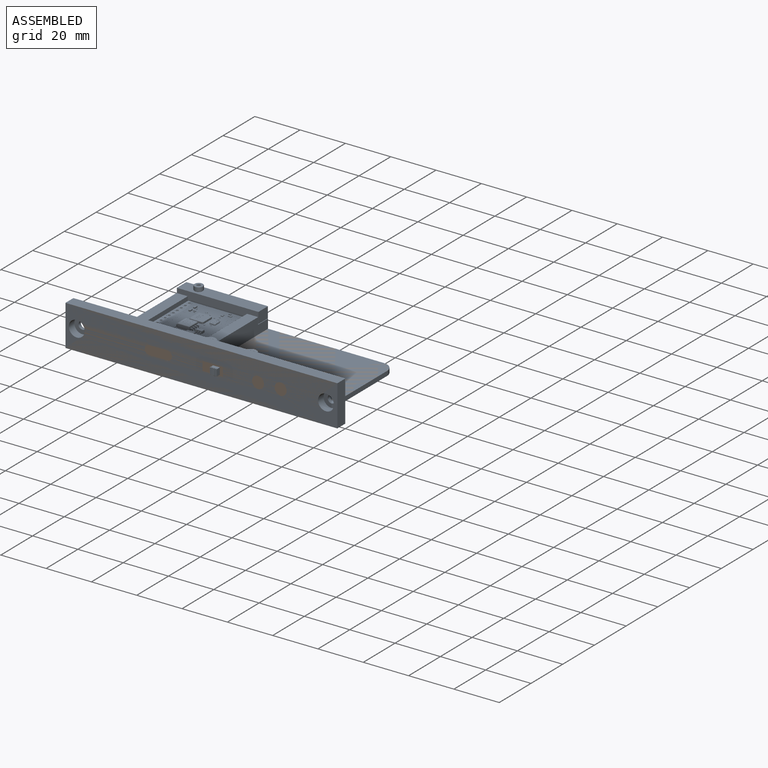
[diagram: assembled view]
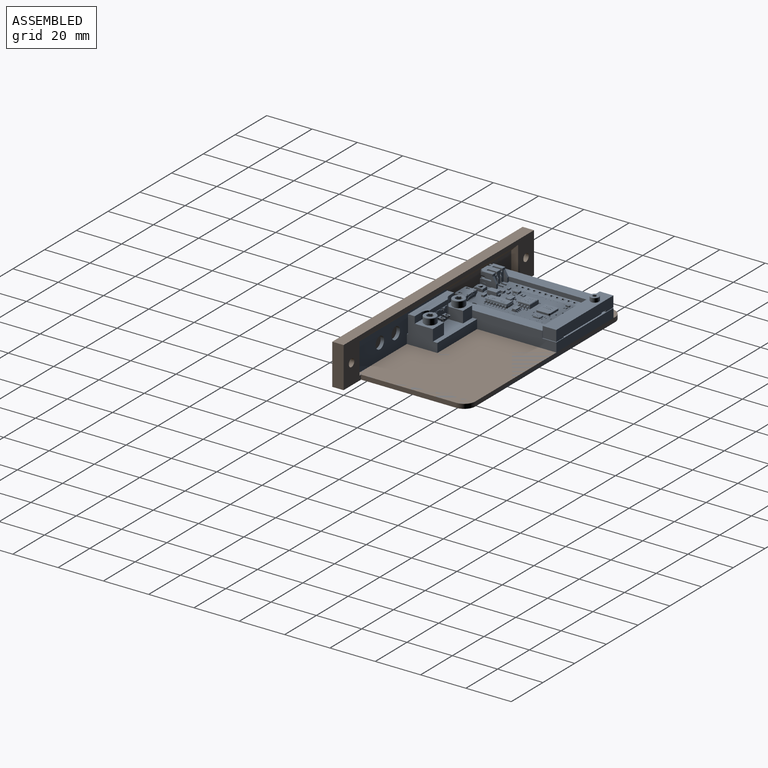
[diagram: assembled view, second angle]
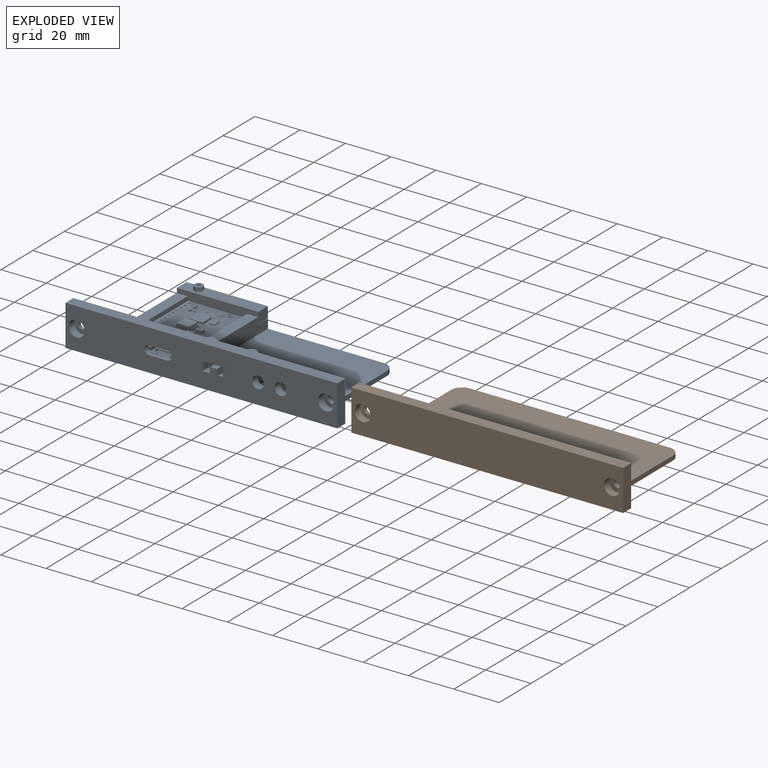
[diagram: exploded view]
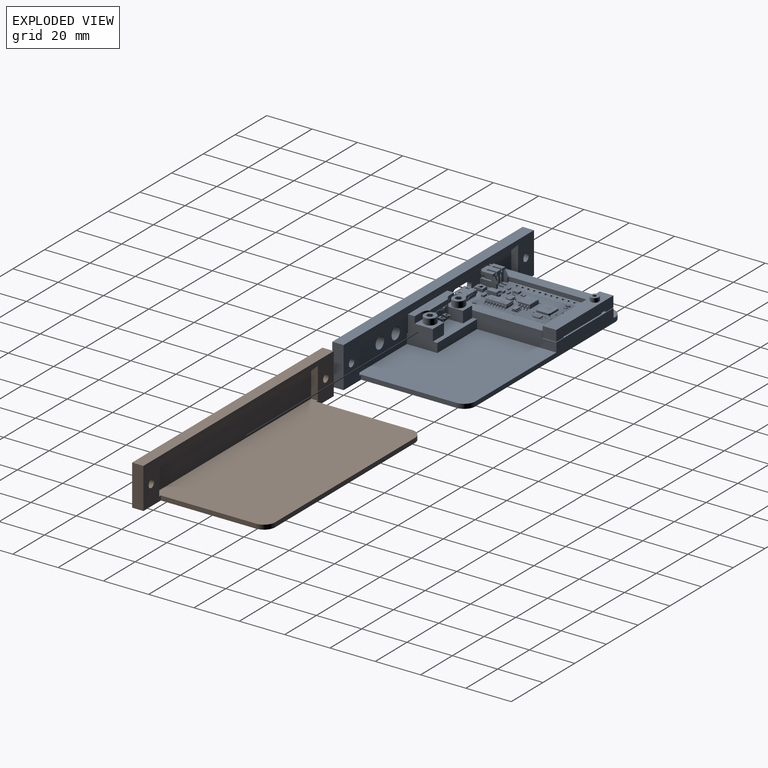
[diagram: exploded view, second angle]
FCSTD DOCUMENT  (FreeCAD 1.0R39109 (Git))
Label: ElectronicsBayLolin32Lite.stl
License: All rights reserved
LicenseURL: http://en.wikipedia.org/wiki/All_rights_reserved
objects: Sketcher::SketchObject×12, App::Link×7, PartDesign::Pad×6, PartDesign::Pocket×4, App::Part×3, PartDesign::Hole×2, PartDesign::Body×2, PartDesign::FeatureBase×1
note: 64 computed .brp shape members not serialized (recipe doc carries the construction recipe); baked Part::Feature solids carry a one-line shape summary decoded from their .brp
EXTERNAL_REF file=../../ReferenceParts/Lolin32Lite.FCStd obj=Lolin_32_Lite_Board_v45
EXTERNAL_REF file=../../ReferenceParts/SS12F15 Switch.FCStd obj=SS12F15
EXTERNAL_REF file=../../ReferenceParts/M3.FCStd obj=Part
EXTERNAL_REF file=../../ReferenceParts/M2.FCStd obj=Part
EXTERNAL_REF file=ElectronicsBayLolin32Lite-SwitchRetainer.stl.FCStd obj=Part003
EXTERNAL_REF file=ElectronicsBayLolin32Lite-board-retainer.stl.FCStd obj=Part003

FEATURE [Sketcher::SketchObject] Sketch
  ArcFitTolerance = 1e-06
  AttachmentSupport = -> [XZ_Plane001]
  FullyConstrained = true
  MakeInternals = false
  MapMode = 5
  Placement = pos=(0,0,0) rot=(1,0,0;1.5708rad)
  sketch-geometry (4):
    g0: LineSegment StartX=0 StartY=9 StartZ=0 EndX=0 EndY=-9 EndZ=0
    g1: LineSegment StartX=0 StartY=-9 StartZ=0 EndX=120 EndY=-9 EndZ=0
    g2: LineSegment StartX=120 StartY=-9 StartZ=0 EndX=120 EndY=9 EndZ=0
    g3: LineSegment StartX=120 StartY=9 StartZ=0 EndX=0 EndY=9 EndZ=0
  constraints (11):
    c: Coincident(g0,g1)
    c: Coincident(g1,g2)
    c: Coincident(g2,g3)
    c: Coincident(g3,g0)
    c: Vertical(g2)
    c: Horizontal(g1)
    c: Horizontal(g3)
    c: PointOnObject(g0,g-2)
    c: DistanceX(g3,g3) = 120
    c: DistanceY(g0,g0) = 18
    c: Symmetric(g0,g0,g-1)
FEATURE [PartDesign::Pad] Pad  label="Panel"
  Direction = (0,-1,2e-16)
  Length = 5
  Length2 = 10
  Placement = pos=(0,0,0) rot=(1,0,0;1.5708rad)
  Profile = -> Sketch
  ReferenceAxis = -> Sketch [N_Axis]
  Refine = true
  Suppressed = false
  Type = 0
FEATURE [Sketcher::SketchObject] Sketch001
  ArcFitTolerance = 1e-06
  AttachmentOffset = pos=(0,0,-9) rot=(0,0,1;0rad)
  AttachmentSupport = -> [XY_Plane001]
  FullyConstrained = true
  MakeInternals = false
  MapMode = 5
  Placement = pos=(0,0,-9) rot=(0,0,1;0rad)
  sketch-geometry (8):
    g0: LineSegment StartX=11 StartY=0 StartZ=0 EndX=109 EndY=0 EndZ=0
    g1: LineSegment StartX=109 StartY=0 StartZ=0 EndX=109 EndY=42 EndZ=0
    g2: LineSegment StartX=104 StartY=47 StartZ=0 EndX=16 EndY=47 EndZ=0
    g3: LineSegment StartX=11 StartY=42 StartZ=0 EndX=11 EndY=0 EndZ=0
    g4: ArcOfCircle CenterX=16 CenterY=42 CenterZ=0 NormalX=0 NormalY=0 NormalZ=1 AngleXU=0 Radius=5 StartAngle=1.5708 EndAngle=3.14159
    g5: GeomPoint [constr] X=11 Y=47 Z=0
    g6: ArcOfCircle CenterX=104 CenterY=42 CenterZ=0 NormalX=0 NormalY=0 NormalZ=1 AngleXU=0 Radius=5 StartAngle=7e-16 EndAngle=1.5708
    g7: GeomPoint [constr] X=109 Y=47 Z=0
  constraints (20):
    c: Coincident(g0,g1)
    c: Coincident(g3,g0)
    c: Horizontal(g0)
    c: Horizontal(g2)
    c: Vertical(g1)
    c: Vertical(g3)
    c: PointOnObject(g0,g-1)
    c: DistanceX(g-1,g5) = 11
    c: DistanceX(g5,g7) = 98
    c: DistanceY(g-1,g5) = 47
    c: PointOnObject(g5,g2)
    c: PointOnObject(g5,g3)
    c: Tangent(g2,g4) = -1.5708
    c: Tangent(g3,g4) = -1.5708
    c: PointOnObject(g7,g1)
    c: PointOnObject(g7,g2)
    c: Tangent(g1,g6) = -1.5708
    c: Tangent(g2,g6) = -1.5708
    c: Equal(g6,g4)
    c: Radius(g6) = 5
FEATURE [PartDesign::Pad] Pad001  label="Base"
  BaseFeature = -> Pad
  Direction = (0,0,1)
  Length = 2
  Length2 = 10
  Placement = pos=(0,0,0) rot=(1,0,0;1.5708rad)
  Profile = -> Sketch001
  ReferenceAxis = -> Sketch001 [N_Axis]
  Refine = true
  Suppressed = false
  Type = 0
FEATURE [Sketcher::SketchObject] Sketch002
  ArcFitTolerance = 1e-06
  AttachmentOffset = pos=(0,0,10) rot=(0,0,1;0rad)
  AttachmentSupport = -> [XZ_Plane001]
  FullyConstrained = true
  MakeInternals = false
  MapMode = 5
  Placement = pos=(0,-10,2.2e-15) rot=(1,0,0;1.5708rad)
  sketch-geometry (2):
    g0: Circle CenterX=5 CenterY=0 CenterZ=0 NormalX=0 NormalY=0 NormalZ=1 AngleXU=0 Radius=1.5
    g1: Circle CenterX=115 CenterY=0 CenterZ=0 NormalX=0 NormalY=0 NormalZ=1 AngleXU=0 Radius=1.5
  constraints (6):
    c: Horizontal(g1,g0)
    c: Equal(g0,g1)
    c: Diameter(g1) = 3
    c: DistanceX(g0,g1) = 110
    c: DistanceX(g-1,g0) = 5
    c: PointOnObject(g0,g-1)
FEATURE [PartDesign::Hole] Hole
  BaseFeature = -> Pad001
  CustomThreadClearance = 0
  Depth = 25
  DepthType = 0
  Diameter = 3.4
  DrillForDepth = false
  DrillPoint = 1
  DrillPointAngle = 118
  HoleCutCountersinkAngle = 90
  HoleCutCustomValues = false
  HoleCutDepth = 8.5
  HoleCutDiameter = 7
  HoleCutType = 1
  ModelThread = false
  Placement = pos=(0,0,0) rot=(1,0,0;1.5708rad)
  Profile = -> Sketch002
  Refine = true
  Suppressed = false
  Tapered = false
  TaperedAngle = 90
  ThreadClass = 0
  ThreadDepth = 25
  ThreadDepthType = 0
  ThreadDirection = 0
  ThreadFit = 0
  ThreadSize = 9
  ThreadType = 1
  Threaded = false
  UseCustomThreadClearance = false
FEATURE [App::Link] Link  label="Lolin 32 Lite Board v45"
  LinkPlacement = pos=(22,-3,-3) rot=(0,0,1;0rad)
  LinkedObject = -> <external ../../ReferenceParts/Lolin32Lite.FCStd>#Lolin_32_Lite_Board_v45
  Placement = pos=(22,-3,-3) rot=(0,0,1;0rad)
FEATURE [App::Link] Link001  label="SS12F15"
  LinkPlacement = pos=(65,-1,0) rot=(1,0,0;1.5708rad)
  LinkedObject = -> <external ../../ReferenceParts/SS12F15 Switch.FCStd>#SS12F15
  Placement = pos=(65,-1,0) rot=(1,0,0;1.5708rad)
FEATURE [Sketcher::SketchObject] Sketch003
  ArcFitTolerance = 1e-06
  AttachmentOffset = pos=(0,0,60) rot=(0,0,1;0rad)
  AttachmentSupport = -> [YZ_Plane001]
  FullyConstrained = true
  MakeInternals = false
  MapMode = 5
  Placement = pos=(60,0,0) rot=(0.57735,0.57735,0.57735;2.0944rad)
  sketch-geometry (4):
    g0: LineSegment StartX=0 StartY=-7 StartZ=0 EndX=-3 EndY=-7 EndZ=0
    g1: LineSegment StartX=-3 StartY=-7 StartZ=0 EndX=-3 EndY=4 EndZ=0
    g2: LineSegment StartX=-3 StartY=4 StartZ=0 EndX=0 EndY=7 EndZ=0
    g3: LineSegment StartX=0 StartY=7 StartZ=0 EndX=0 EndY=-7 EndZ=0
  constraints (12):
    c: PointOnObject(g0,g-2)
    c: Horizontal(g0)
    c: Coincident(g0,g1)
    c: Vertical(g1)
    c: Coincident(g1,g2)
    c: PointOnObject(g2,g-2)
    c: Coincident(g2,g3)
    c: Coincident(g3,g0)
    c: DistanceY(g0,g-1) = 7
    c: DistanceY(g-1,g2) = 7
    c: Angle(g2,g1) = 0.785398
    c: DistanceX(g0,g-1) = 3
FEATURE [PartDesign::Pocket] Pocket
  BaseFeature = -> Hole
  Direction = (-1,0,0)
  Length = 100
  Length2 = 5
  Midplane = true
  Placement = pos=(0,0,0) rot=(1,0,0;1.5708rad)
  Profile = -> Sketch003
  ReferenceAxis = -> Sketch003 [N_Axis]
  Refine = true
  Suppressed = false
  Type = 0
FEATURE [PartDesign::Body] Body  label="ElectronicsBayBase"
  AllowCompound = false
  Group = -> [Sketch,Pad,Sketch001,Pad001,Sketch002,Hole,Sketch003,Pocket]
  Origin = -> Origin001
  Tip = -> Pocket
FEATURE [App::Part] Part002  label="ElectronicsBayBlank"
  Group = -> [Body]
  Origin = -> Origin003
FEATURE [PartDesign::FeatureBase] Clone
  BaseFeature = -> Body
  Suppressed = false
FEATURE [Sketcher::SketchObject] Sketch004
  ArcFitTolerance = 1e-06
  AttachmentOffset = pos=(0,0,-9) rot=(0,0,1;0rad)
  AttachmentSupport = -> [XY_Plane004]
  FullyConstrained = true
  MakeInternals = false
  MapMode = 5
  Placement = pos=(0,0,-9) rot=(0,0,1;0rad)
  sketch-geometry (10):
    g0: LineSegment StartX=21.9 StartY=47 StartZ=0 EndX=17 EndY=47 EndZ=0
    g1: LineSegment StartX=17 StartY=47 StartZ=0 EndX=17 EndY=-4 EndZ=0
    g2: LineSegment StartX=17 StartY=-4 StartZ=0 EndX=21.9 EndY=-4 EndZ=0
    g3: LineSegment StartX=21.9 StartY=-4 StartZ=0 EndX=21.9 EndY=47 EndZ=0
    g4: LineSegment StartX=48.1 StartY=47 StartZ=0 EndX=48.1 EndY=-4 EndZ=0
    g5: LineSegment StartX=48.1 StartY=-4 StartZ=0 EndX=53 EndY=-4 EndZ=0
    g6: LineSegment StartX=53 StartY=-4 StartZ=0 EndX=53 EndY=47 EndZ=0
    g7: LineSegment StartX=53 StartY=47 StartZ=0 EndX=48.1 EndY=47 EndZ=0
    g8: LineSegment [constr] StartX=21.9 StartY=-4 StartZ=0 EndX=48.1 EndY=-4 EndZ=0
    g9: GeomPoint [constr] X=35 Y=-4 Z=0
  constraints (27):
    c: Coincident(g0,g1)
    c: Coincident(g1,g2)
    c: Coincident(g2,g3)
    c: Coincident(g3,g0)
    c: Horizontal(g0)
    c: Horizontal(g2)
    c: Vertical(g1)
    c: Vertical(g3)
    c: Coincident(g4,g5)
    c: Coincident(g5,g6)
    c: Coincident(g6,g7)
    c: Coincident(g7,g4)
    c: Vertical(g4)
    c: Vertical(g6)
    c: Horizontal(g5)
    c: Horizontal(g7)
    c: Equal(g5,g2)
    c: DistanceY(g-1,g0) = 47
    c: DistanceY(g1,g-1) = 4
    c: Horizontal(g2,g4)
    c: Horizontal(g4,g0)
    c: DistanceX(g0,g6) = 36
    c: Coincident(g8,g2)
    c: Coincident(g8,g4)
    c: Symmetric(g8,g8,g9)
    c: DistanceX(g-1,g9) = 35
    c: DistanceX(g8,g8) = 26.2
FEATURE [PartDesign::Pad] Pad002  label="SideWalls"
  BaseFeature = -> Clone
  Direction = (0,0,1)
  Length = 9
  Length2 = 10
  Profile = -> Sketch004
  ReferenceAxis = -> Sketch004 [N_Axis]
  Refine = true
  Suppressed = false
  Type = 0
FEATURE [Sketcher::SketchObject] Sketch005
  ArcFitTolerance = 1e-06
  AttachmentOffset = pos=(0,0,-9) rot=(0,0,1;0rad)
  AttachmentSupport = -> [XY_Plane004]
  FullyConstrained = true
  MakeInternals = false
  MapMode = 5
  Placement = pos=(0,0,-9) rot=(0,0,1;0rad)
  sketch-geometry (8):
    g0: LineSegment StartX=20 StartY=47 StartZ=0 EndX=20 EndY=41 EndZ=0
    g1: LineSegment StartX=20 StartY=41 StartZ=0 EndX=50 EndY=41 EndZ=0
    g2: LineSegment StartX=50 StartY=41 StartZ=0 EndX=50 EndY=47 EndZ=0
    g3: LineSegment StartX=50 StartY=47 StartZ=0 EndX=20 EndY=47 EndZ=0
    g4: LineSegment StartX=49 StartY=8 StartZ=0 EndX=19 EndY=8 EndZ=0
    g5: LineSegment StartX=19 StartY=8 StartZ=0 EndX=19 EndY=-4 EndZ=0
    g6: LineSegment StartX=19 StartY=-4 StartZ=0 EndX=49 EndY=-4 EndZ=0
    g7: LineSegment StartX=49 StartY=-4 StartZ=0 EndX=49 EndY=8 EndZ=0
  constraints (24):
    c: Coincident(g0,g1)
    c: Coincident(g1,g2)
    c: Coincident(g2,g3)
    c: Coincident(g3,g0)
    c: Vertical(g0)
    c: Vertical(g2)
    c: Horizontal(g1)
    c: Horizontal(g3)
    c: Coincident(g4,g5)
    c: Coincident(g5,g6)
    c: Coincident(g6,g7)
    c: Coincident(g7,g4)
    c: Horizontal(g4)
    c: Horizontal(g6)
    c: Vertical(g5)
    c: Vertical(g7)
    c: DistanceY(g-1,g4) = 8
    c: DistanceX(g-1,g6) = 49
    c: DistanceX(g6,g6) = 30
    c: Distance(g5,g-1) = 4
    c: DistanceY(g-1,g0) = 47
    c: DistanceX(g-1,g0) = 20
    c: DistanceX(g3,g3) = 30
    c: DistanceY(g0,g0) = 6
FEATURE [PartDesign::Pad] Pad003  label="Standoffs"
  BaseFeature = -> Pad002
  Direction = (0,0,1)
  Length = 6
  Length2 = 10
  Profile = -> Sketch005
  ReferenceAxis = -> Sketch005 [N_Axis]
  Refine = true
  Suppressed = false
  Type = 0
FEATURE [Sketcher::SketchObject] Sketch006
  ArcFitTolerance = 1e-06
  AttachmentOffset = pos=(0,0,5) rot=(0,0,1;0rad)
  AttachmentSupport = -> [XZ_Plane004]
  FullyConstrained = true
  MakeInternals = false
  MapMode = 5
  Placement = pos=(0,-5,1.1e-15) rot=(1,0,0;1.5708rad)
  sketch-geometry (12):
    g0: ArcOfCircle CenterX=37 CenterY=0 CenterZ=0 NormalX=0 NormalY=0 NormalZ=1 AngleXU=0 Radius=2 StartAngle=1.5708 EndAngle=4.71239
    g1: ArcOfCircle CenterX=45 CenterY=1e-16 CenterZ=0 NormalX=0 NormalY=0 NormalZ=1 AngleXU=0 Radius=2 StartAngle=4.71239 EndAngle=7.85398
    g2: LineSegment StartX=37 StartY=2 StartZ=0 EndX=45 EndY=2 EndZ=0
    g3: LineSegment StartX=37 StartY=-2 StartZ=0 EndX=45 EndY=-2 EndZ=0
    g4: LineSegment StartX=60.5 StartY=2 StartZ=0 EndX=60.5 EndY=-2 EndZ=0
    g5: LineSegment StartX=60.5 StartY=-2 StartZ=0 EndX=69.5 EndY=-2 EndZ=0
    g6: LineSegment StartX=69.5 StartY=-2 StartZ=0 EndX=69.5 EndY=2 EndZ=0
    g7: LineSegment StartX=69.5 StartY=2 StartZ=0 EndX=60.5 EndY=2 EndZ=0
    g8: GeomPoint X=65 Y=2 Z=0
    g9: GeomPoint X=41 Y=2 Z=0
    g10: Circle CenterX=85 CenterY=0 CenterZ=0 NormalX=0 NormalY=0 NormalZ=1 AngleXU=0 Radius=2.65
    g11: Circle CenterX=95 CenterY=0 CenterZ=0 NormalX=0 NormalY=0 NormalZ=1 AngleXU=0 Radius=2.65
  constraints (29):
    c: Tangent(g0,g2) = 1.5708
    c: Tangent(g0,g3) = -1.5708
    c: Tangent(g1,g2) = 1.5708
    c: Tangent(g1,g3) = -1.5708
    c: Equal(g0,g1)
    c: Horizontal(g3)
    c: PointOnObject(g0,g-1)
    c: Radius(g0) = 2
    c: DistanceX(g2,g2) = 8
    c: Coincident(g4,g5)
    c: Coincident(g5,g6)
    c: Coincident(g6,g7)
    c: Coincident(g7,g4)
    c: Vertical(g6)
    c: Horizontal(g5)
    c: Horizontal(g7)
    c: Symmetric(g4,g4,g-1)
    c: DistanceX(g7,g7) = 9
    c: Distance(g6,g6) = 4
    c: Symmetric(g7,g7,g8)
    c: DistanceX(g-1,g8) = 65
    c: Symmetric(g2,g2,g9)
    c: DistanceX(g-1,g9) = 41
    c: PointOnObject(g10,g-1)
    c: PointOnObject(g11,g-1)
    c: Diameter(g10) = 5.3
    c: Diameter(g11) = 5.3
    c: DistanceX(g10,g11) = 10
    c: DistanceX(g-1,g10) = 85
FEATURE [Sketcher::SketchObject] Sketch007
  ArcFitTolerance = 1e-06
  AttachmentSupport = -> [XY_Plane004]
  FullyConstrained = true
  MakeInternals = false
  MapMode = 5
  sketch-geometry (4):
    g0: LineSegment StartX=53 StartY=-1.5 StartZ=0 EndX=53 EndY=-4 EndZ=0
    g1: LineSegment StartX=53 StartY=-4 StartZ=0 EndX=110 EndY=-4 EndZ=0
    g2: LineSegment StartX=110 StartY=-4 StartZ=0 EndX=110 EndY=-1.5 EndZ=0
    g3: LineSegment StartX=110 StartY=-1.5 StartZ=0 EndX=53 EndY=-1.5 EndZ=0
  constraints (12):
    c: Coincident(g0,g1)
    c: Coincident(g1,g2)
    c: Coincident(g2,g3)
    c: Coincident(g3,g0)
    c: Vertical(g0)
    c: Vertical(g2)
    c: Horizontal(g1)
    c: Horizontal(g3)
    c: DistanceY(g0,g-1) = 4
    c: Distance(g0,g-1) = 1.5
    c: DistanceX(g-1,g0) = 53
    c: DistanceX(g-1,g1) = 110
FEATURE [PartDesign::Pad] Pad004
  BaseFeature = -> Pad003
  Direction = (0,0,1)
  Length = 15
  Length2 = 10
  Midplane = true
  Profile = -> Sketch007
  ReferenceAxis = -> Sketch007 [N_Axis]
  Refine = true
  Suppressed = false
  Type = 0
FEATURE [PartDesign::Pocket] Pocket001  label="PanelCutouts"
  BaseFeature = -> Pad004
  Direction = (0,1,-2e-16)
  Length = 5
  Length2 = 5
  Midplane = true
  Profile = -> Sketch006
  ReferenceAxis = -> Sketch006 [N_Axis]
  Refine = true
  Suppressed = false
  Type = 1
FEATURE [Sketcher::SketchObject] Sketch009
  ArcFitTolerance = 1e-06
  AttachmentOffset = pos=(0,0,-9) rot=(0,0,1;0rad)
  AttachmentSupport = -> [XY_Plane004]
  FullyConstrained = true
  MakeInternals = false
  MapMode = 5
  Placement = pos=(0,0,-9) rot=(0,0,1;0rad)
  sketch-geometry (4):
    g0: LineSegment StartX=53 StartY=-3 StartZ=0 EndX=78 EndY=-3 EndZ=0
    g1: LineSegment StartX=78 StartY=-3 StartZ=0 EndX=78 EndY=12 EndZ=0
    g2: LineSegment StartX=78 StartY=12 StartZ=0 EndX=53 EndY=12 EndZ=0
    g3: LineSegment StartX=53 StartY=12 StartZ=0 EndX=53 EndY=-3 EndZ=0
  constraints (12):
    c: Coincident(g0,g1)
    c: Coincident(g1,g2)
    c: Coincident(g2,g3)
    c: Coincident(g3,g0)
    c: Horizontal(g0)
    c: Horizontal(g2)
    c: Vertical(g1)
    c: Vertical(g3)
    c: DistanceX(g-1,g2) = 53
    c: DistanceX(g2,g2) = 25
    c: DistanceY(g0,g-1) = 3
    c: DistanceY(g-1,g1) = 12
FEATURE [PartDesign::Pad] Pad006
  BaseFeature = -> Pocket001
  Direction = (0,0,1)
  Length = 6
  Length2 = 10
  Profile = -> Sketch009
  ReferenceAxis = -> Sketch009 [N_Axis]
  Refine = true
  Suppressed = false
  Type = 0
FEATURE [App::Link] Link002  label="M3x10"
  LinkPlacement = pos=(74,6,2) rot=(0,0,1;0rad)
  LinkedObject = -> <external ../../ReferenceParts/M3.FCStd>#Part
  Placement = pos=(74,6,2) rot=(0,0,1;0rad)
FEATURE [Sketcher::SketchObject] Sketch013
  ArcFitTolerance = 1e-06
  AttachmentSupport = -> [XY_Plane004]
  FullyConstrained = true
  MakeInternals = false
  MapMode = 5
  sketch-geometry (4):
    g0: Circle CenterX=56 CenterY=6 CenterZ=0 NormalX=0 NormalY=0 NormalZ=1 AngleXU=0 Radius=1.5
    g1: Circle CenterX=74 CenterY=6 CenterZ=0 NormalX=0 NormalY=0 NormalZ=1 AngleXU=0 Radius=1.5
    g2: LineSegment [constr] StartX=56 StartY=6 StartZ=0 EndX=74 EndY=6 EndZ=0
    g3: GeomPoint [constr] X=65 Y=6 Z=0
  constraints (9):
    c: Coincident(g2,g0)
    c: Coincident(g2,g1)
    c: Horizontal(g2)
    c: Symmetric(g2,g2,g3)
    c: DistanceX(g-1,g3) = 65
    c: DistanceX(g2,g2) = 18
    c: Equal(g0,g1)
    c: Diameter(g0) = 3
    c: DistanceY(g-1,g1) = 6
FEATURE [PartDesign::Hole] Hole002
  BaseFeature = -> Pad006
  CustomThreadClearance = 0
  Depth = 25
  DepthType = 0
  Diameter = 2.5
  DrillForDepth = false
  DrillPoint = 1
  DrillPointAngle = 118
  HoleCutCountersinkAngle = 90
  HoleCutCustomValues = false
  HoleCutDepth = 0
  HoleCutDiameter = 6.1
  HoleCutType = 0
  ModelThread = false
  Profile = -> Sketch013
  Refine = true
  Suppressed = false
  Tapered = false
  TaperedAngle = 90
  ThreadClass = 0
  ThreadDepth = 25
  ThreadDepthType = 0
  ThreadDirection = 0
  ThreadFit = 0
  ThreadSize = 9
  ThreadType = 1
  Threaded = true
  UseCustomThreadClearance = false
FEATURE [App::Link] Link003  label="M2x10"
  LinkPlacement = pos=(24.5,44,2) rot=(0,0,1;0rad)
  LinkedObject = -> <external ../../ReferenceParts/M2.FCStd>#Part
  Placement = pos=(24.5,44,2) rot=(0,0,1;0rad)
FEATURE [App::Link] Link004  label="SwitchRetainer"
  LinkPlacement = pos=(65,-1.00001,3.55e-14) rot=(-1,0,0;1.5708rad)
  LinkedObject = -> <external ElectronicsBayLolin32Lite-SwitchRetainer.stl.FCStd>#Part003
  Placement = pos=(65,-1.00001,3.55e-14) rot=(-1,0,0;1.5708rad)
FEATURE [Sketcher::SketchObject] Sketch014
  ArcFitTolerance = 1e-06
  AttachmentSupport = -> [YZ_Plane004]
  FullyConstrained = true
  MakeInternals = false
  MapMode = 5
  Placement = pos=(0,0,0) rot=(0.57735,0.57735,0.57735;2.0944rad)
  sketch-geometry (4):
    g0: LineSegment StartX=50.8 StartY=10 StartZ=0 EndX=40.8 EndY=10 EndZ=0
    g1: LineSegment StartX=40.8 StartY=10 StartZ=0 EndX=40.8 EndY=-3 EndZ=0
    g2: LineSegment StartX=40.8 StartY=-3 StartZ=0 EndX=50.8 EndY=-3 EndZ=0
    g3: LineSegment StartX=50.8 StartY=-3 StartZ=0 EndX=50.8 EndY=10 EndZ=0
  constraints (12):
    c: Coincident(g0,g1)
    c: Coincident(g1,g2)
    c: Coincident(g2,g3)
    c: Coincident(g3,g0)
    c: Horizontal(g0)
    c: Horizontal(g2)
    c: Vertical(g1)
    c: Vertical(g3)
    c: DistanceY(g2,g-1) = 3
    c: DistanceX(g-1,g0) = 40.8
    c: DistanceY(g-1,g0) = 10
    c: DistanceX(g2,g2) = 10
FEATURE [PartDesign::Pocket] Pocket002
  BaseFeature = -> Hole002
  Direction = (-1,0,0)
  Length = 5
  Length2 = 5
  Midplane = true
  Profile = -> Sketch014
  ReferenceAxis = -> Sketch014 [N_Axis]
  Refine = true
  Suppressed = false
  Type = 1
FEATURE [Sketcher::SketchObject] Sketch015
  ArcFitTolerance = 1e-06
  AttachmentSupport = -> [XY_Plane004]
  FullyConstrained = true
  MakeInternals = false
  MapMode = 5
  sketch-geometry (1):
    g0: Circle CenterX=24.5 CenterY=44 CenterZ=0 NormalX=0 NormalY=0 NormalZ=1 AngleXU=0 Radius=1
  constraints (3):
    c: DistanceX(g-1,g0) = 24.5
    c: DistanceY(g-1,g0) = 44
    c: Diameter(g0) = 2
FEATURE [PartDesign::Pocket] Pocket003
  BaseFeature = -> Pocket002
  Direction = (0,0,-1)
  Length = 5
  Length2 = 5
  Midplane = true
  Profile = -> Sketch015
  ReferenceAxis = -> Sketch015 [N_Axis]
  Refine = true
  Suppressed = false
  Type = 1
FEATURE [PartDesign::Body] Body001  label="ElectronicsBayLolin"
  AllowCompound = false
  Group = -> [Clone,Sketch004,Pad002,Sketch005,Pad003,Sketch006,Sketch007,Pad004,Pocket001,Sketch009,Pad006,Sketch013,Hole002,Sketch014,Pocket002,Sketch015,Pocket003]
  Origin = -> Origin004
  Tip = -> Pocket003
FEATURE [App::Part] Part  label="ElectronicsBay.stl"
  Group = -> [Body001]
  Origin = -> Origin
FEATURE [App::Link] Link005  label="BoardRetainer"
  LinkPlacement = pos=(35,40.75,3.56248e-06) rot=(1,0,0;3.14159rad)
  LinkedObject = -> <external ElectronicsBayLolin32Lite-board-retainer.stl.FCStd>#Part003
  Placement = pos=(35,40.75,3.56248e-06) rot=(1,0,0;3.14159rad)
FEATURE [App::Link] Link006  label="M3x011"
  LinkPlacement = pos=(56,6,2) rot=(0,0,1;0rad)
  LinkedObject = -> Link002
  Placement = pos=(56,6,2) rot=(0,0,1;0rad)
FEATURE [App::Part] Part001  label="EletronicsBayAssembly"
  Group = -> [Link,Part,Link001,Link002,Link003,Link004,Link005,Link006]
  Origin = -> Origin002

RESOLVED EXTERNAL PARTS (link-assembly join: the EXTERNAL_REF files above that resolve inside this repo's crawl, each included once):
---- part ElectronicsBayLolin32Lite-SwitchRetainer.stl.FCStd = doc fcstd_b98e1360601b ----
FCSTD DOCUMENT  (FreeCAD 1.0R39109 (Git))
Label: ElectronicsBayLolin32Lite-SwitchRetainer.stl
License: All rights reserved
LicenseURL: http://en.wikipedia.org/wiki/All_rights_reserved
objects: Sketcher::SketchObject×4, PartDesign::Pocket×2, App::Link×1, PartDesign::Pad×1, PartDesign::Hole×1, PartDesign::Mirrored×1, PartDesign::Body×1, App::Part×1
note: 23 computed .brp shape members not serialized (recipe doc carries the construction recipe); baked Part::Feature solids carry a one-line shape summary decoded from their .brp
EXTERNAL_REF file=../../ReferenceParts/SS12F15 Switch.FCStd obj=SS12F15

FEATURE [App::Link] Link001  label="SS12F15"
  LinkPlacement = pos=(0,0,0) rot=(1,0,0;1.5708rad)
  LinkedObject = -> <external ../../ReferenceParts/SS12F15 Switch.FCStd>#SS12F15
  Placement = pos=(0,0,0) rot=(1,0,0;1.5708rad)
FEATURE [Sketcher::SketchObject] Sketch008
  ArcFitTolerance = 1e-06
  AttachmentSupport = -> [XY_Plane005]
  FullyConstrained = true
  MakeInternals = false
  MapMode = 5
  sketch-geometry (8):
    g0: LineSegment StartX=-11.75 StartY=3 StartZ=0 EndX=-11.75 EndY=-5 EndZ=0
    g1: LineSegment StartX=-11.75 StartY=-5 StartZ=0 EndX=13 EndY=-5 EndZ=0
    g2: LineSegment StartX=13 StartY=-5 StartZ=0 EndX=13 EndY=3 EndZ=0
    g3: LineSegment StartX=-5.6 StartY=3 StartZ=0 EndX=-5.6 EndY=-3 EndZ=0
    g4: LineSegment StartX=-5.6 StartY=-3 StartZ=0 EndX=5.6 EndY=-3 EndZ=0
    g5: LineSegment StartX=5.6 StartY=-3 StartZ=0 EndX=5.6 EndY=3 EndZ=0
    g6: LineSegment StartX=13 StartY=3 StartZ=0 EndX=5.6 EndY=3 EndZ=0
    g7: LineSegment StartX=-5.6 StartY=3 StartZ=0 EndX=-11.75 EndY=3 EndZ=0
  constraints (24):
    c: Coincident(g0,g1)
    c: Coincident(g1,g2)
    c: Vertical(g0)
    c: Coincident(g3,g4)
    c: Coincident(g4,g5)
    c: Vertical(g3)
    c: DistanceY(g1,g-1) = 5
    c: Vertical(g2)
    c: Symmetric(g4,g3,g-2)
    c: DistanceX(g4,g4) = 11.2
    c: DistanceX(g5,g2) = 7.4
    c: Coincident(g6,g2)
    c: Coincident(g6,g5)
    c: Coincident(g7,g3)
    c: Coincident(g7,g0)
    c: Horizontal(g7)
    c: Horizontal(g6)
    c: DistanceY(g-1,g5) = 3
    c: DistanceY(g4,g-1) = 3
    c: Horizontal(g3,g5)
    c: Vertical(g5)
    c: DistanceX(g0,g-1) = 11.75
    c: DistanceX(g-1,g1) = 13
    c: Horizontal(g1)
FEATURE [PartDesign::Pad] Pad005
  Direction = (0,0,1)
  Length = 11
  Length2 = 10
  Profile = -> Sketch008
  ReferenceAxis = -> Sketch008 [N_Axis]
  Refine = true
  Suppressed = false
  Type = 0
FEATURE [Sketcher::SketchObject] Sketch010
  ArcFitTolerance = 1e-06
  AttachmentOffset = pos=(0,0,6) rot=(0,0,1;0rad)
  AttachmentSupport = -> [YZ_Plane005]
  FullyConstrained = true
  MakeInternals = false
  MapMode = 5
  Placement = pos=(6,0,0) rot=(0.57735,0.57735,0.57735;2.0944rad)
  sketch-geometry (4):
    g0: LineSegment StartX=-10 StartY=4.5 StartZ=0 EndX=3 EndY=4.5 EndZ=0
    g1: LineSegment StartX=3 StartY=4.5 StartZ=0 EndX=3 EndY=15 EndZ=0
    g2: LineSegment StartX=3 StartY=15 StartZ=0 EndX=-10 EndY=15 EndZ=0
    g3: LineSegment StartX=-10 StartY=15 StartZ=0 EndX=-10 EndY=4.5 EndZ=0
  constraints (12):
    c: Horizontal(g0)
    c: Coincident(g0,g1)
    c: Vertical(g1)
    c: Coincident(g1,g2)
    c: Horizontal(g2)
    c: Coincident(g2,g3)
    c: Coincident(g3,g0)
    c: Vertical(g3)
    c: DistanceX(g-1,g1) = 3
    c: DistanceX(g2,g-1) = 10
    c: DistanceY(g-1,g0) = 4.5
    c: DistanceY(g-1,g2) = 15
FEATURE [PartDesign::Pocket] Pocket002
  BaseFeature = -> Pad005
  Direction = (-1,0,0)
  Length = 12
  Length2 = 5
  Profile = -> Sketch010
  ReferenceAxis = -> Sketch010 [N_Axis]
  Refine = true
  Suppressed = false
  Type = 0
FEATURE [Sketcher::SketchObject] Sketch011
  ArcFitTolerance = 1e-06
  AttachmentOffset = pos=(0,0,10) rot=(0,0,1;0rad)
  AttachmentSupport = -> [XZ_Plane005]
  FullyConstrained = true
  MakeInternals = false
  MapMode = 5
  Placement = pos=(0,-10,2.2e-15) rot=(1,0,0;1.5708rad)
  sketch-geometry (1):
    g0: Circle CenterX=9 CenterY=7 CenterZ=0 NormalX=0 NormalY=0 NormalZ=1 AngleXU=0 Radius=1.5
  constraints (3):
    c: DistanceX(g-1,g0) = 9
    c: DistanceY(g-1,g0) = 7
    c: Diameter(g0) = 3
FEATURE [Sketcher::SketchObject] Sketch012
  ArcFitTolerance = 1e-06
  AttachmentOffset = pos=(0,0,2) rot=(0,0,1;0rad)
  AttachmentSupport = -> [XZ_Plane005]
  FullyConstrained = true
  MakeInternals = false
  MapMode = 5
  Placement = pos=(0,-2,4e-16) rot=(1,0,0;1.5708rad)
  sketch-geometry (5):
    g0: ArcOfCircle CenterX=9 CenterY=7 CenterZ=0 NormalX=0 NormalY=0 NormalZ=1 AngleXU=0 Radius=4 StartAngle=3.86433 EndAngle=4.71239
    g1: LineSegment StartX=9 StartY=3 StartZ=0 EndX=20 EndY=3 EndZ=0
    g2: LineSegment StartX=20 StartY=3 StartZ=0 EndX=20 EndY=20 EndZ=0
    g3: LineSegment StartX=20 StartY=20 StartZ=0 EndX=6 EndY=20 EndZ=0
    g4: LineSegment StartX=6 StartY=20 StartZ=0 EndX=6 EndY=4.35425 EndZ=0
  constraints (15):
    c: Horizontal(g1)
    c: Coincident(g2,g1)
    c: Coincident(g3,g2)
    c: Coincident(g4,g3)
    c: Coincident(g4,g0)
    c: Vertical(g4)
    c: DistanceX(g-1,g0) = 9
    c: DistanceY(g-1,g0) = 7
    c: Tangent(g1,g0) = -1.5708
    c: DistanceX(g-1,g3) = 6
    c: Radius(g0) = 4
    c: Horizontal(g3)
    c: Vertical(g2)
    c: DistanceX(g-1,g1) = 20
    c: DistanceY(g-1,g3) = 20
FEATURE [PartDesign::Pocket] Pocket003
  BaseFeature = -> Pocket002
  Direction = (0,1,-2e-16)
  Length = 5
  Length2 = 5
  Profile = -> Sketch012
  ReferenceAxis = -> Sketch012 [N_Axis]
  Refine = true
  Reversed = true
  Suppressed = false
  Type = 1
FEATURE [PartDesign::Hole] Hole001
  BaseFeature = -> Pocket003
  CustomThreadClearance = 0
  Depth = 25
  DepthType = 0
  Diameter = 3.4
  DrillForDepth = false
  DrillPoint = 1
  DrillPointAngle = 118
  HoleCutCountersinkAngle = 90
  HoleCutCustomValues = false
  HoleCutDepth = 0
  HoleCutDiameter = 8
  HoleCutType = 0
  ModelThread = false
  Profile = -> Sketch011
  Refine = true
  Suppressed = false
  Tapered = false
  TaperedAngle = 90
  ThreadClass = 0
  ThreadDepth = 25
  ThreadDepthType = 0
  ThreadDirection = 0
  ThreadFit = 0
  ThreadSize = 9
  ThreadType = 1
  Threaded = false
  UseCustomThreadClearance = false
FEATURE [PartDesign::Mirrored] Mirrored
  BaseFeature = -> Hole001
  MirrorPlane = -> Sketch012 [V_Axis]
  Originals = -> [Pocket003,Hole001]
  Refine = true
  Suppressed = false
  TransformMode = 0
FEATURE [PartDesign::Body] Body002  label="SwitchRetainer"
  AllowCompound = false
  Group = -> [Sketch008,Pad005,Sketch010,Pocket002,Sketch011,Sketch012,Pocket003,Hole001,Mirrored]
  Origin = -> Origin005
  Tip = -> Mirrored
FEATURE [App::Part] Part003  label="SwitchRetainer.stl"
  Group = -> [Body002]
  Origin = -> Origin006
  Placement = pos=(0,0,0) rot=(1,0,0;4.71239rad)
---- part ElectronicsBayLolin32Lite-board-retainer.stl.FCStd = doc fcstd_3b42efc7925f ----
FCSTD DOCUMENT  (FreeCAD 1.0R39109 (Git))
Label: ElectronicsBayLolin32Lite-board-retainer.stl
License: All rights reserved
LicenseURL: http://en.wikipedia.org/wiki/All_rights_reserved
objects: Sketcher::SketchObject×2, PartDesign::Pad×1, PartDesign::Hole×1, PartDesign::Body×1, App::Part×1
note: 11 computed .brp shape members not serialized (recipe doc carries the construction recipe); baked Part::Feature solids carry a one-line shape summary decoded from their .brp

FEATURE [Sketcher::SketchObject] Sketch016
  ArcFitTolerance = 1e-06
  AttachmentOffset = pos=(0,0,0.2) rot=(0,0,1;0rad)
  AttachmentSupport = -> [XZ_Plane006]
  FullyConstrained = true
  MakeInternals = false
  MapMode = 5
  Placement = pos=(0,-0.2,0) rot=(1,0,0;1.5708rad)
  sketch-geometry (9):
    g0: LineSegment StartX=-18 StartY=2.8 StartZ=0 EndX=-18 EndY=-2 EndZ=0
    g1: LineSegment StartX=-18 StartY=-2 StartZ=0 EndX=18 EndY=-2 EndZ=0
    g2: LineSegment StartX=18 StartY=-2 StartZ=0 EndX=18 EndY=2.8 EndZ=0
    g3: LineSegment StartX=18 StartY=2.8 StartZ=0 EndX=13.25 EndY=2.8 EndZ=0
    g4: LineSegment StartX=13.25 StartY=2.8 StartZ=0 EndX=13.25 EndY=2 EndZ=0
    g5: LineSegment StartX=13.25 StartY=2 StartZ=0 EndX=-13.25 EndY=2 EndZ=0
    g6: LineSegment StartX=-13.25 StartY=2 StartZ=0 EndX=-13.25 EndY=2.8 EndZ=0
    g7: LineSegment StartX=-13.25 StartY=2.8 StartZ=0 EndX=-18 EndY=2.8 EndZ=0
    g8: GeomPoint X=0 Y=2 Z=0
  constraints (25):
    c: Vertical(g0)
    c: Coincident(g0,g1)
    c: Horizontal(g1)
    c: Coincident(g1,g2)
    c: Vertical(g2)
    c: Coincident(g2,g3)
    c: Coincident(g3,g4)
    c: Vertical(g4)
    c: Coincident(g4,g5)
    c: Horizontal(g5)
    c: Coincident(g5,g6)
    c: Coincident(g6,g7)
    c: Coincident(g7,g0)
    c: Horizontal(g3)
    c: Horizontal(g3,g6)
    c: Horizontal(g7)
    c: Equal(g7,g3)
    c: Vertical(g6)
    c: Symmetric(g4,g5,g8)
    c: PointOnObject(g8,g-2)
    c: Distance(g5,g-1) = 2
    c: DistanceY(g6,g6) = 0.8
    c: DistanceY(g0,g-1) = 2
    c: DistanceX(g5,g5) = 26.5
    c: DistanceX(g0,g2) = 36
FEATURE [PartDesign::Pad] Pad007
  Direction = (0,-1,2e-16)
  Length = 6
  Length2 = 10
  Placement = pos=(0,0,0) rot=(1,0,0;1.5708rad)
  Profile = -> Sketch016
  ReferenceAxis = -> Sketch016 [N_Axis]
  Refine = true
  Suppressed = false
  Type = 0
FEATURE [Sketcher::SketchObject] Sketch017
  ArcFitTolerance = 1e-06
  AttachmentOffset = pos=(0,0,-2) rot=(0,0,1;0rad)
  AttachmentSupport = -> [XY_Plane006]
  FullyConstrained = true
  MakeInternals = false
  MapMode = 5
  Placement = pos=(0,0,-2) rot=(0,0,1;0rad)
  sketch-geometry (1):
    g0: Circle CenterX=-10.5 CenterY=-3.25 CenterZ=0 NormalX=0 NormalY=0 NormalZ=1 AngleXU=0 Radius=1
  constraints (3):
    c: DistanceY(g0,g-1) = 3.25
    c: DistanceX(g0,g-1) = 10.5
    c: Diameter(g0) = 2
FEATURE [PartDesign::Hole] Hole003
  BaseFeature = -> Pad007
  CustomThreadClearance = 0
  Depth = 74.358
  DepthType = 1
  Diameter = 2.9
  DrillForDepth = false
  DrillPoint = 1
  DrillPointAngle = 118
  HoleCutCountersinkAngle = 90
  HoleCutCustomValues = false
  HoleCutDepth = 0
  HoleCutDiameter = 5
  HoleCutType = 0
  ModelThread = false
  Placement = pos=(0,0,0) rot=(1,0,0;1.5708rad)
  Profile = -> Sketch017
  Refine = true
  Reversed = true
  Suppressed = false
  Tapered = false
  TaperedAngle = 90
  ThreadClass = 0
  ThreadDepth = 74.358
  ThreadDepthType = 0
  ThreadDirection = 0
  ThreadFit = 0
  ThreadSize = 8
  ThreadType = 1
  Threaded = false
  UseCustomThreadClearance = false
FEATURE [PartDesign::Body] Body002  label="Body"
  AllowCompound = false
  Group = -> [Sketch016,Pad007,Sketch017,Hole003]
  Origin = -> Origin006
  Tip = -> Hole003
FEATURE [App::Part] Part003  label="BoardRetainer.stl"
  Group = -> [Body002]
  Origin = -> Origin005
  Placement = pos=(35,40.5,0) rot=(1,0,0;0rad)
